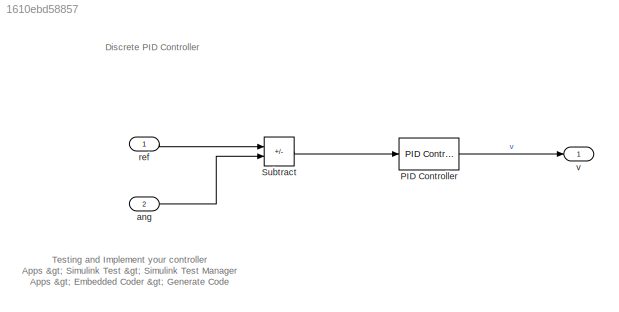
MODEL slx_1610ebd58857
KIND model
CONFIG AbsTol = auto
CONFIG EnableMultiTasking = off
CONFIG FixedStep = 0.1
CONFIG MaxStep = auto
CONFIG MinStep = auto
CONFIG RelTol = 1e-3
CONFIG SampleTimeConstraint = Unconstrained
CONFIG SolverName = FixedStepAuto
CONFIG StartTime = 0.0
CONFIG StopTime = 10
BLOCK [Reference] PID Controller  REF=slpidlib/PID Controller
  SourceBlock = slpidlib/PID Controller
  SourceType = PID 1dof
BLOCK [Sum] Subtract
  IconShape = rectangular
  Inputs = +-
BLOCK [Inport] ang
  OutDataTypeStr = single
  Port = 2
  PortDimensions = 1
  SampleTime = Ctrl_Ts
  SamplingMode = Sample based
  SignalType = real
BLOCK [Inport] ref
  OutDataTypeStr = single
  PortDimensions = 1
  SampleTime = Ctrl_Ts
  SamplingMode = Sample based
  SignalType = real
BLOCK [Outport] v
  OutDataTypeStr = single
  OutMax = 5
  OutMin = -5
  PortDimensions = 1
  SampleTime = Ctrl_Ts
  SamplingMode = Sample based
  SignalType = real
ANNOTATION (root): Discrete PID Controller
ANNOTATION (root): Testing and Implement your controller Apps > Simulink Test > Simulink Test Manager Apps > Embedded Coder > Generate Code
LINE PID Controller:1 -> v:1
LINE Subtract:1 -> PID Controller:1
LINE ang:1 -> Subtract:2
LINE ref:1 -> Subtract:1
